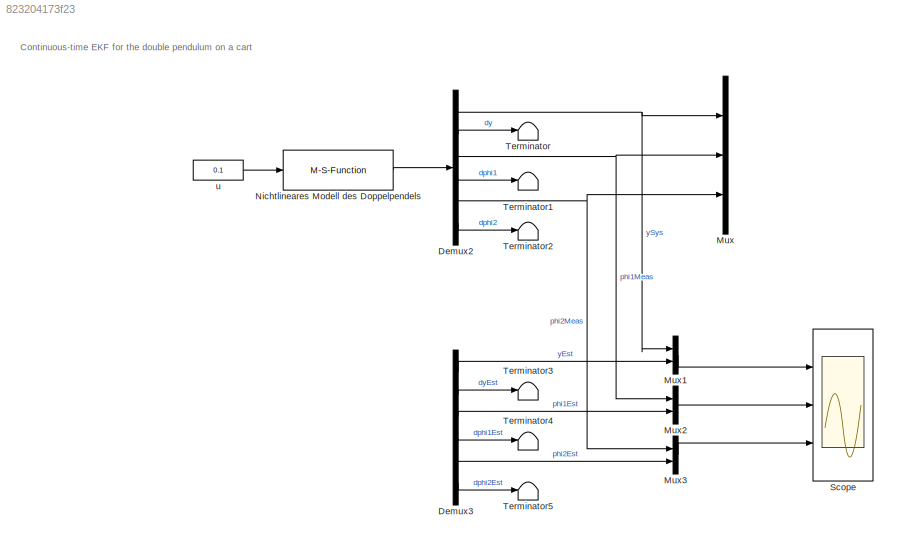
MODEL slx_823204173f23
KIND model
CONFIG AbsTol = auto
CONFIG EnableMultiTasking = on
CONFIG FixedStep = 0.01
CONFIG MaxStep = 0.05
CONFIG MinStep = auto
CONFIG RelTol = 1e-3
CONFIG SampleTimeConstraint = Unconstrained
CONFIG Solver = ode45
CONFIG SolverName = ode45
CONFIG StartTime = 0.0
CONFIG StopTime = 10
BLOCK [Demux] Demux2
  Outputs = 6
  Ports = [1, 6]
BLOCK [Demux] Demux3
  Outputs = 6
  Ports = [1, 6]
BLOCK [Mux] Mux
  DisplayOption = bar
  Inputs = 3
  Ports = [3, 1]
BLOCK [Mux] Mux1
  DisplayOption = bar
  Inputs = 2
  Ports = [2, 1]
BLOCK [Mux] Mux2
  DisplayOption = bar
  Inputs = 2
  Ports = [2, 1]
BLOCK [Mux] Mux3
  DisplayOption = bar
  Inputs = 2
  Ports = [2, 1]
BLOCK [M-S-Function] Nichtlineares Modell des Doppelpendels
  FunctionName = dip_sim_ref
  Parameters = x0
  Ports = [1, 1]
BLOCK [Scope] Scope
  Floating = off
  NumInputPorts = 3
  Ports = [3]
  ScopeSpecificationString = Simulink.scopes.TimeScopeBlockCfg('CurrentConfiguration', extmgr.ConfigurationSet(extmgr.Configuration('Core','General UI',true),extmgr.Configuration('Core','Source UI',true),extmgr.Configuration('Sources','WiredSimulink',true),extmgr.Configuration('Visuals','Time Domain',true,'SerializedDisplays',{struct('MinYLimReal','-1.75016','MaxYLimReal','5.7514','YLabelReal','','MinYLimMag','0.00000','MaxYL...<+2728ch>
BLOCK [Terminator] Terminator
BLOCK [Terminator] Terminator1
BLOCK [Terminator] Terminator2
BLOCK [Terminator] Terminator3
BLOCK [Terminator] Terminator4
BLOCK [Terminator] Terminator5
BLOCK [Constant] u
  Value = 0.1
ANNOTATION (root): Continuous-time EKF for the double pendulum on a cart
NET Demux2:1 -> Mux1:1, Mux:1
LINE Demux2:2 -> Terminator:1
NET Demux2:3 -> Mux2:1, Mux:2
LINE Demux2:4 -> Terminator1:1
NET Demux2:5 -> Mux3:1, Mux:3
LINE Demux2:6 -> Terminator2:1
LINE Demux3:1 -> Mux1:2
LINE Demux3:2 -> Terminator3:1
LINE Demux3:3 -> Mux2:2
LINE Demux3:4 -> Terminator4:1
LINE Demux3:5 -> Mux3:2
LINE Demux3:6 -> Terminator5:1
LINE Mux1:1 -> Scope:1
LINE Mux2:1 -> Scope:2
LINE Mux3:1 -> Scope:3
LINE Nichtlineares Modell des Doppelpendels:1 -> Demux2:1
LINE u:1 -> Nichtlineares Modell des Doppelpendels:1
note: NET lines group one-source signal fan-out (src -> all destinations, sorted); 1:1 wires keep LINE
